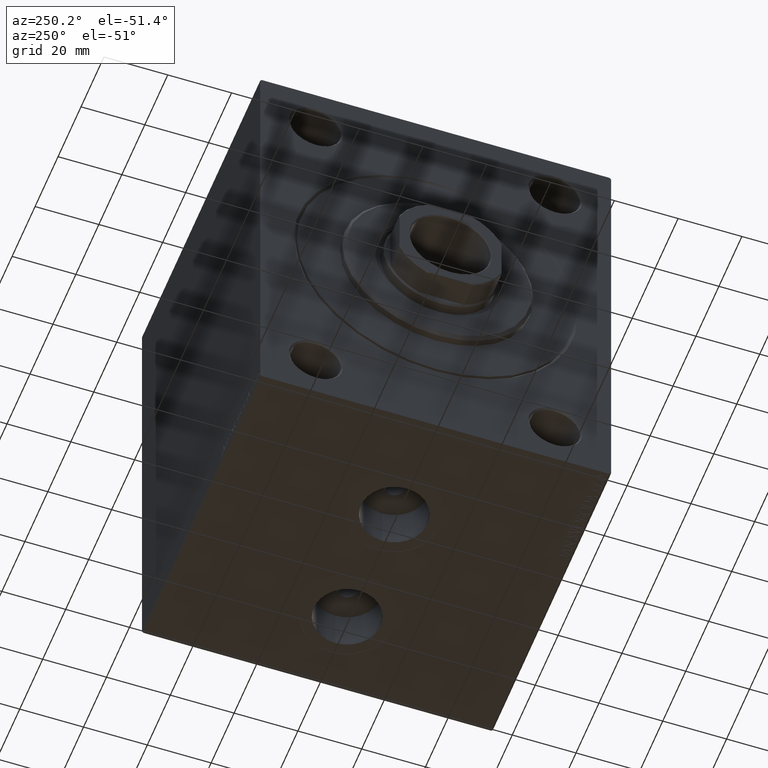
[diagram: clean part render]
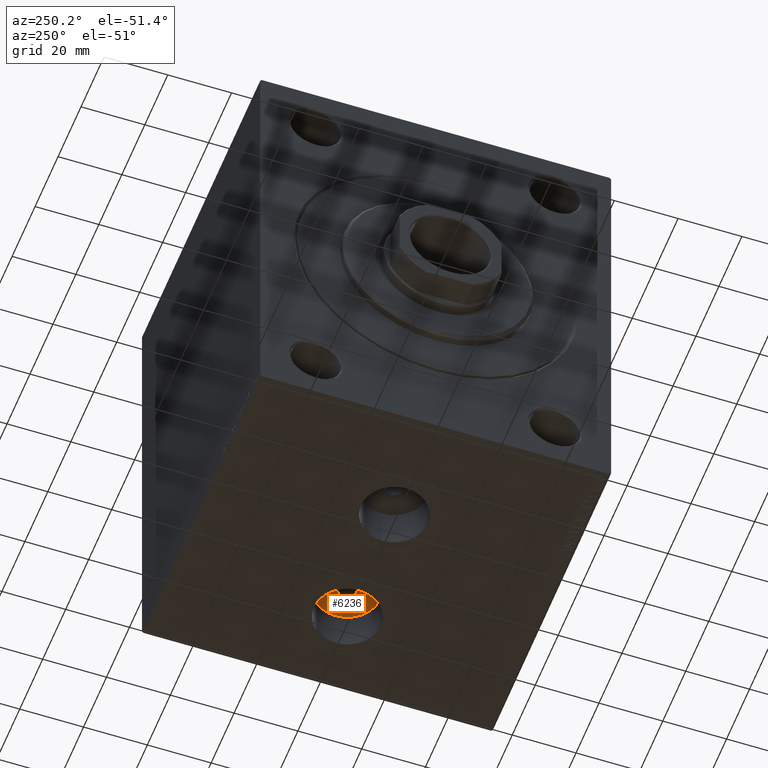
[diagram: same view with one face highlighted and labeled with its STEP entity id]
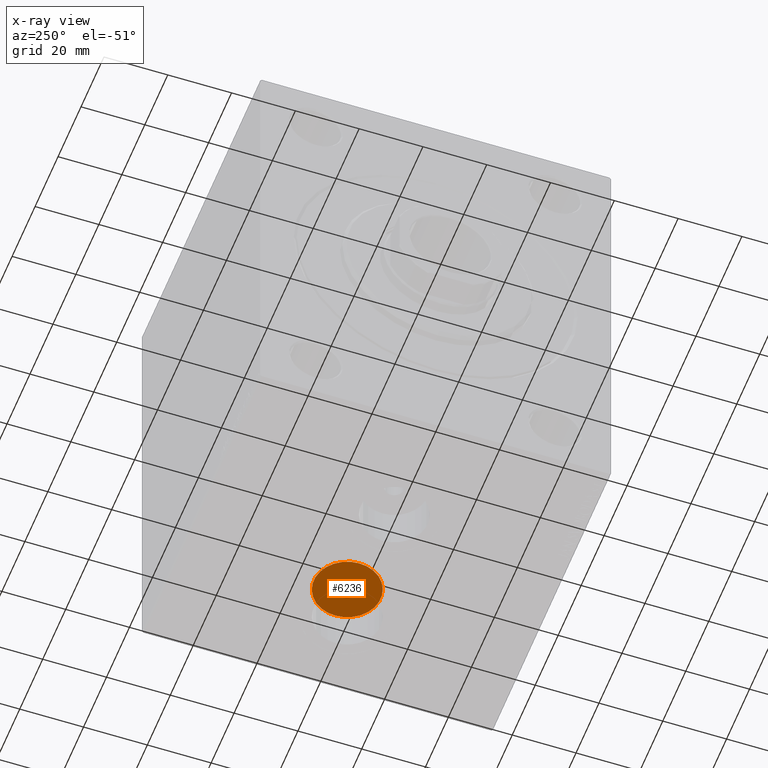
[diagram: x-ray of the same camera — body ghosted, the highlighted face saturated]
A machine part, auxiliary view. The second image highlights one B-rep face of the part: STEP entity #6236.
The next image is the same camera in x-ray: the body ghosted, the highlighted face saturated — about 0% of this face is hidden behind the body in this view.
In plain terms, the highlighted planar face has unit normal (0, 0, -1).
Its self-contained STEP definition (entity closure, byte-faithful):
#57 = DIRECTION ( 'NONE',  ( -1.000000000000000000, 0.000000000000000000, 0.000000000000000000 ) ) ;
#2173 = AXIS2_PLACEMENT_3D ( 'NONE', #4193, #10658, #21700 ) ;
#2180 = FACE_BOUND ( 'NONE', #23827, .T. ) ;
#2717 = DIRECTION ( 'NONE',  ( -1.000000000000000000, 0.000000000000000000, 0.000000000000000000 ) ) ;
#3594 = EDGE_CURVE ( 'NONE', #21341, #22353, #18334, .T. ) ;
#4193 = CARTESIAN_POINT ( 'NONE',  ( 76.99999999999998579, 3.042716304786445633E-15, -57.00000000000000000 ) ) ;
#4247 = ORIENTED_EDGE ( 'NONE', *, *, #35026, .F. ) ;
#4758 = AXIS2_PLACEMENT_3D ( 'NONE', #38125, #24761, #20869 ) ;
#4782 = CIRCLE ( 'NONE', #10662, 3.000000000000002665 ) ;
#5405 = AXIS2_PLACEMENT_3D ( 'NONE', #37480, #34246, #2717 ) ;
#6236 = ADVANCED_FACE ( 'NONE', ( #2180, #33703 ), #8868, .T. ) ;
#8868 = PLANE ( 'NONE',  #40538 ) ;
#10345 = ORIENTED_EDGE ( 'NONE', *, *, #44636, .F. ) ;
#10389 = EDGE_LOOP ( 'NONE', ( #19589, #27381 ) ) ;
#10658 = DIRECTION ( 'NONE',  ( 0.000000000000000000, 0.000000000000000000, -1.000000000000000000 ) ) ;
#10662 = AXIS2_PLACEMENT_3D ( 'NONE', #42165, #39384, #57 ) ;
#10806 = CARTESIAN_POINT ( 'NONE',  ( 79.99999999999998579, 3.410110344530653444E-15, -57.00000000000000000 ) ) ;
#12753 = DIRECTION ( 'NONE',  ( -1.000000000000000000, 0.000000000000000000, -0.000000000000000000 ) ) ;
#15991 = CARTESIAN_POINT ( 'NONE',  ( 0.000000000000000000, 0.000000000000000000, -57.00000000000000000 ) ) ;
#16216 = DIRECTION ( 'NONE',  ( 0.000000000000000000, 0.000000000000000000, -1.000000000000000000 ) ) ;
#18334 = CIRCLE ( 'NONE', #2173, 10.48000000000000398 ) ;
#19432 = CIRCLE ( 'NONE', #4758, 3.000000000000002665 ) ;
#19589 = ORIENTED_EDGE ( 'NONE', *, *, #38784, .T. ) ;
#20869 = DIRECTION ( 'NONE',  ( -1.000000000000000000, 0.000000000000000000, 0.000000000000000000 ) ) ;
#21341 = VERTEX_POINT ( 'NONE', #36653 ) ;
#21700 = DIRECTION ( 'NONE',  ( -1.000000000000000000, 0.000000000000000000, 0.000000000000000000 ) ) ;
#22353 = VERTEX_POINT ( 'NONE', #36738 ) ;
#23006 = VERTEX_POINT ( 'NONE', #10806 ) ;
#23827 = EDGE_LOOP ( 'NONE', ( #10345, #4247 ) ) ;
#24761 = DIRECTION ( 'NONE',  ( 0.000000000000000000, 0.000000000000000000, -1.000000000000000000 ) ) ;
#27381 = ORIENTED_EDGE ( 'NONE', *, *, #3594, .T. ) ;
#29535 = CARTESIAN_POINT ( 'NONE',  ( 73.99999999999998579, 3.042716304786445633E-15, -57.00000000000000000 ) ) ;
#31204 = VERTEX_POINT ( 'NONE', #29535 ) ;
#33703 = FACE_OUTER_BOUND ( 'NONE', #10389, .T. ) ;
#34246 = DIRECTION ( 'NONE',  ( 0.000000000000000000, 0.000000000000000000, -1.000000000000000000 ) ) ;
#35026 = EDGE_CURVE ( 'NONE', #23006, #31204, #4782, .T. ) ;
#36653 = CARTESIAN_POINT ( 'NONE',  ( 87.47999999999998977, 4.326146150292871911E-15, -57.00000000000000000 ) ) ;
#36738 = CARTESIAN_POINT ( 'NONE',  ( 66.51999999999998181, 3.042716304786445633E-15, -57.00000000000000000 ) ) ;
#37480 = CARTESIAN_POINT ( 'NONE',  ( 76.99999999999998579, 3.042716304786445633E-15, -57.00000000000000000 ) ) ;
#38125 = CARTESIAN_POINT ( 'NONE',  ( 76.99999999999998579, 3.042716304786445633E-15, -57.00000000000000000 ) ) ;
#38784 = EDGE_CURVE ( 'NONE', #22353, #21341, #39219, .T. ) ;
#39219 = CIRCLE ( 'NONE', #5405, 10.48000000000000398 ) ;
#39384 = DIRECTION ( 'NONE',  ( 0.000000000000000000, 0.000000000000000000, -1.000000000000000000 ) ) ;
#40538 = AXIS2_PLACEMENT_3D ( 'NONE', #15991, #16216, #12753 ) ;
#42165 = CARTESIAN_POINT ( 'NONE',  ( 76.99999999999998579, 3.042716304786445633E-15, -57.00000000000000000 ) ) ;
#44636 = EDGE_CURVE ( 'NONE', #31204, #23006, #19432, .T. ) ;